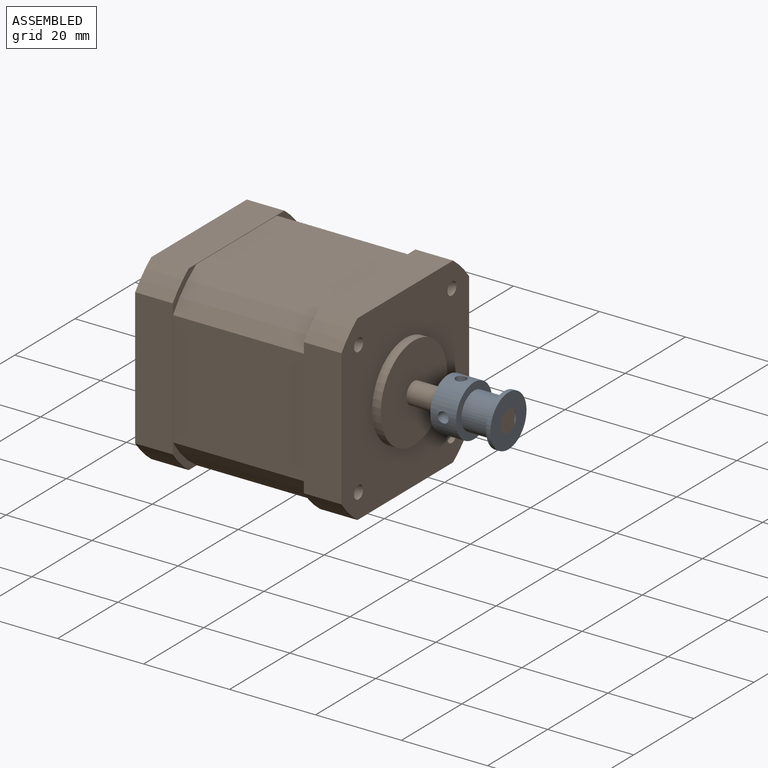
[diagram: assembled view]
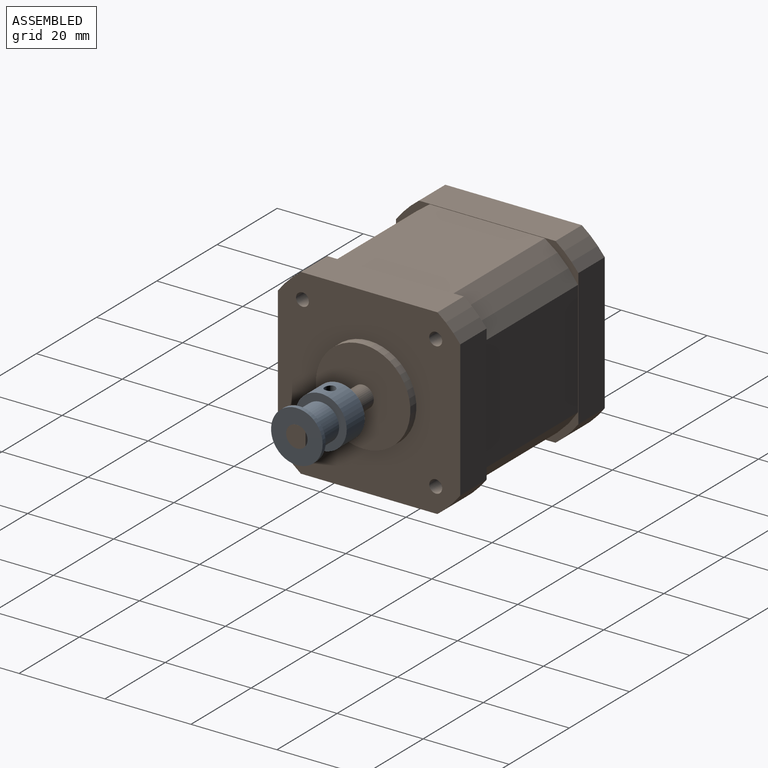
[diagram: assembled view, second angle]
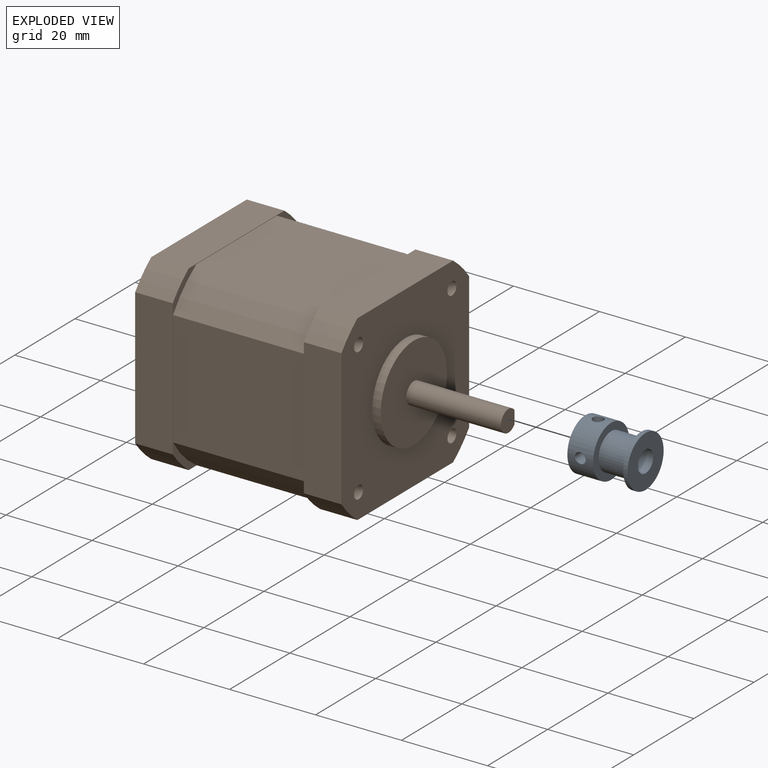
[diagram: exploded view]
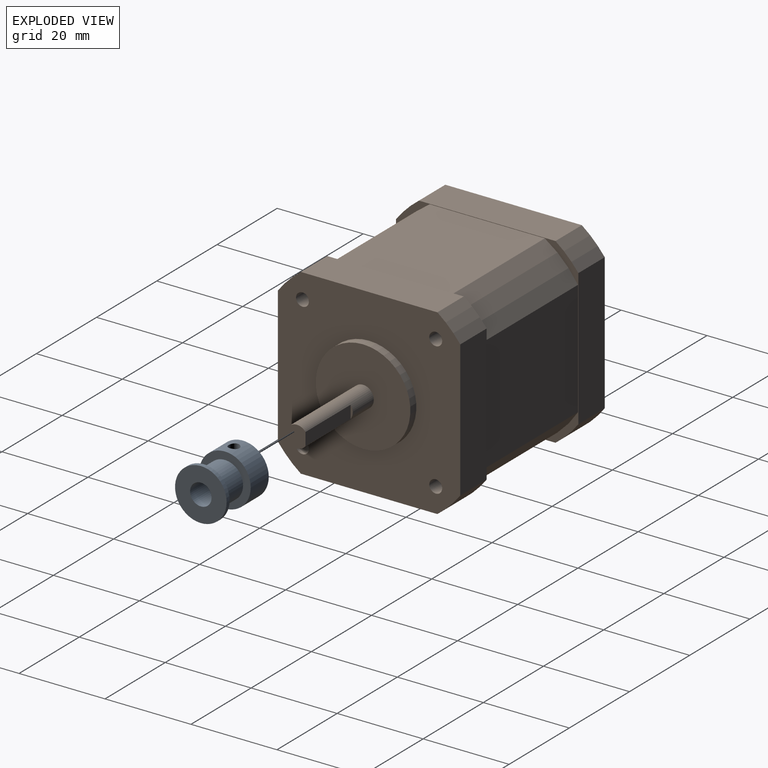
[diagram: exploded view, second angle]
ASSEMBLY  parts=2 mates=2
PART A: 10 faces, bbox 14x12x12 mm
  f0: cylinder r=1.25mm len=3.5mm, axis (0,1,0), area 27.5mm2, adj f4,f5
  f1: cylinder r=1.25mm len=3.7mm, axis (0,0,-1), area 29.1mm2, adj f4,f5
  f2: cylinder r=6mm len=12mm, axis (1,0,0), area 37.7mm2, adj f8,f9
  f3: cylinder r=4.23mm len=8.46mm, axis (1,0,0), area 186mm2, adj f7,f8
  f4: cylinder r=6mm len=12mm, axis (1,0,0), area 221.3mm2, adj f0,f1,f6,f7
  f5: cylinder r=2.5mm len=14mm, axis (1,0,0), area 214.8mm2, adj f0,f1,f6,f9
  f6: plane 12x12mm, normal (-1,0,0), area 93.5mm2, adj f4,f5
  f7: plane 12x12mm, normal (1,0,0), area 56.9mm2, adj f3,f4
  f8: plane 12x12mm, normal (-1,0,0), area 56.9mm2, adj f2,f3
  f9: plane 12x12mm, normal (1,0,0), area 93.5mm2, adj f2,f5
PART B: 50 faces, bbox 42.4x72x42.4 mm
  f0: cylinder r=2.5mm len=22mm, axis (0,1,0), area 297.3mm2, adj f1,f2,f29,f30
  f1: plane 5x4.5mm, normal (0,-1,0), area 18.6mm2, adj f0,f29
  f2: plane 22x22mm, normal (0,-1,0), area 360.5mm2, adj f0,f3
  f3: cylinder r=11mm len=22mm, axis (0,1,0), area 138.2mm2, adj f2,f8
  f4: plane 31.78x8.75mm, normal (1,0,0), area 278mm2, adj f8,f9,f10,f32
  f5: plane 31.78x8.75mm, normal (0,0,-1), area 278mm2, adj f8,f9,f11,f32
  f6: plane 31.78x8.75mm, normal (-1,0,0), area 278mm2, adj f8,f11,f12,f32
  f7: plane 31.78x8.75mm, normal (0,0,1), area 278mm2, adj f8,f10,f12,f32
  f8: plane 42.42x42.42mm, normal (0,-1,0), area 1339.6mm2, adj f3,f4,f5,f6,f7,f9,f10,f11
  f9: cylinder r=26.5mm len=8.75mm, axis (0,1,0), area 66.1mm2, adj f4,f5,f8,f32
  f10: cylinder r=26.5mm len=8.75mm, axis (0,1,0), area 66.1mm2, adj f4,f7,f8,f32
  f11: cylinder r=26.5mm len=8.75mm, axis (0,1,0), area 66.1mm2, adj f5,f6,f8,f32
  f12: cylinder r=26.5mm len=8.75mm, axis (0,1,0), area 66.1mm2, adj f6,f7,f8,f32
  f13: cone r=1.25mm half-angle=59deg, axis (0,-1,0), area 5.7mm2, adj f14
  f14: cylinder r=1.25mm len=2.5mm, axis (0,-1,0), area 11.8mm2, adj f13,f15
  f15: plane 3x3mm, normal (0,-1,0), area 2.2mm2, adj f14,f16
  f16: cylinder r=1.5mm len=6mm, axis (0,-1,0), area 56.5mm2, adj f8,f15
  f17: cone r=1.25mm half-angle=59deg, axis (0,-1,0), area 5.7mm2, adj f18
  f18: cylinder r=1.25mm len=2.5mm, axis (0,-1,0), area 11.8mm2, adj f17,f19
  f19: plane 3x3mm, normal (0,-1,0), area 2.2mm2, adj f18,f20
  f20: cylinder r=1.5mm len=6mm, axis (0,-1,0), area 56.5mm2, adj f8,f19
  f21: cone r=1.25mm half-angle=59deg, axis (0,-1,0), area 5.7mm2, adj f22
  f22: cylinder r=1.25mm len=2.5mm, axis (0,-1,0), area 11.8mm2, adj f21,f23
  f23: plane 3x3mm, normal (0,-1,0), area 2.2mm2, adj f22,f24
  f24: cylinder r=1.5mm len=6mm, axis (0,-1,0), area 56.5mm2, adj f8,f23
  f25: cone r=1.25mm half-angle=59deg, axis (0,-1,0), area 5.7mm2, adj f26
  f26: cylinder r=1.25mm len=2.5mm, axis (0,-1,0), area 11.8mm2, adj f25,f27
  f27: plane 3x3mm, normal (0,-1,0), area 2.2mm2, adj f26,f28
  f28: cylinder r=1.5mm len=6mm, axis (0,-1,0), area 56.5mm2, adj f8,f27
  f29: plane 15x3mm, normal (0,0,1), area 45mm2, adj f0,f1,f30
  f30: plane 3x0.5mm, normal (0,-1,0), area 1mm2, adj f0,f29
  f31: plane 42.42x42.42mm, normal (0,-1,0), area 67.2mm2, adj f33,f34,f35,f36,f37,f38,f39,f40
  f32: plane 42.42x42.42mm, normal (0,1,0), area 67.2mm2, adj f4,f5,f6,f7,f9,f10,f11,f12
  f33: cylinder r=25mm len=30.5mm, axis (0,-1,0), area 335.5mm2, adj f31,f32,f34,f40
  f34: plane 30.5x26.79mm, normal (0,0,1), area 817.1mm2, adj f31,f32,f33,f35
  f35: cylinder r=25mm len=30.5mm, axis (0,-1,0), area 335.5mm2, adj f31,f32,f34,f36
  f36: plane 30.5x26.79mm, normal (1,0,0), area 817.1mm2, adj f31,f32,f35,f37
  f37: cylinder r=25mm len=30.5mm, axis (0,-1,0), area 335.5mm2, adj f31,f32,f36,f38
  f38: plane 30.5x26.79mm, normal (0,0,-1), area 817.1mm2, adj f31,f32,f37,f39
  f39: cylinder r=25mm len=30.5mm, axis (0,-1,0), area 335.5mm2, adj f31,f32,f38,f40
  f40: plane 30.5x26.79mm, normal (-1,0,0), area 817.1mm2, adj f31,f32,f33,f39
  f41: plane 42.42x42.42mm, normal (0,1,0), area 1748.1mm2, adj f42,f43,f44,f45,f46,f47,f48,f49
  f42: cylinder r=26.5mm len=8.75mm, axis (0,1,0), area 66.1mm2, adj f31,f41,f48,f49
  f43: cylinder r=26.5mm len=8.75mm, axis (0,1,0), area 66.1mm2, adj f31,f41,f47,f48
  f44: cylinder r=26.5mm len=8.75mm, axis (0,1,0), area 66.1mm2, adj f31,f41,f46,f47
  f45: cylinder r=26.5mm len=8.75mm, axis (0,1,0), area 66.1mm2, adj f31,f41,f46,f49
  f46: plane 31.78x8.75mm, normal (0,0,1), area 278mm2, adj f31,f41,f44,f45
  f47: plane 31.78x8.75mm, normal (-1,0,0), area 278mm2, adj f31,f41,f43,f44
  f48: plane 31.78x8.75mm, normal (0,0,-1), area 278mm2, adj f31,f41,f42,f43
  f49: plane 31.78x8.75mm, normal (1,0,0), area 278mm2, adj f31,f41,f42,f45
PLACE A t=(-32.1,-30.05,-23.34)mm
PLACE B rot(axis=(-0.58,0.58,0.58),120deg) t=(-42.1,-30.05,-23.34)mm
MATE planar B.f0 <-> A.f2  axis (1,0,0) through (-18.1,-30.05,-23.34)mm
MATE cylindrical B.f0 <-> A.f2  axis (-1,0,0) through (-18.1,-30.05,-23.34)mm
